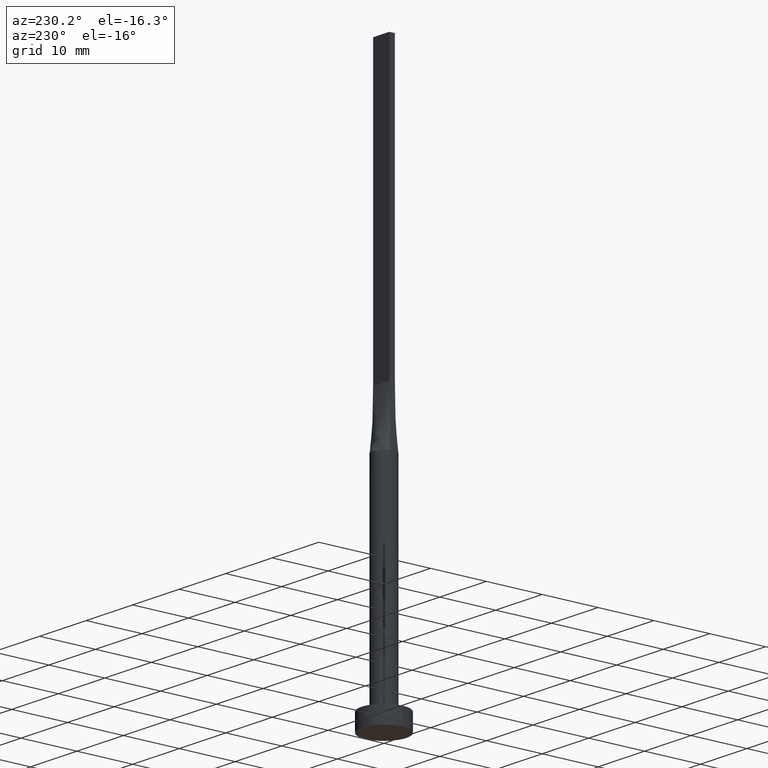
[diagram: clean part render]
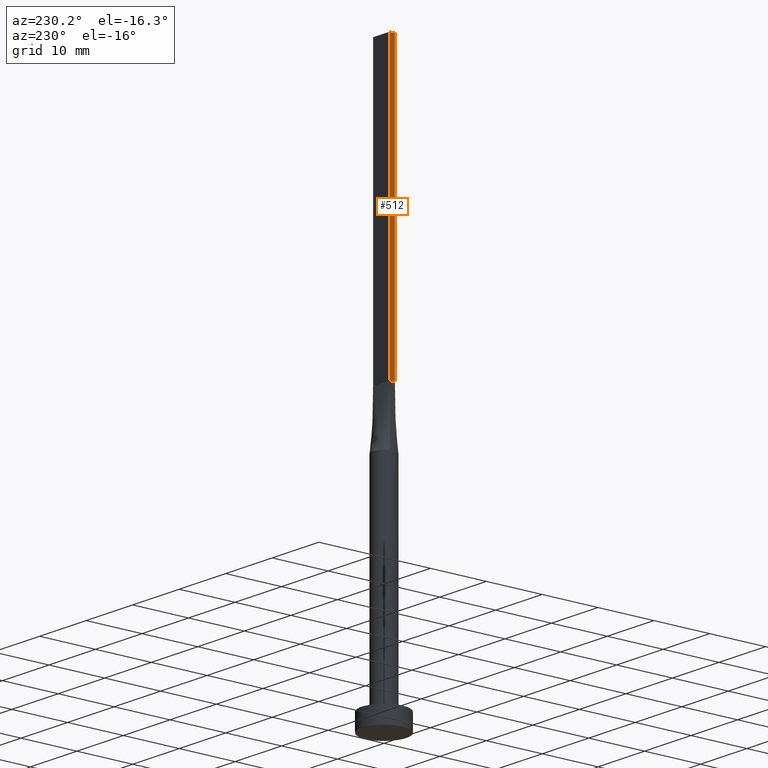
[diagram: same view with one face highlighted and labeled with its STEP entity id]
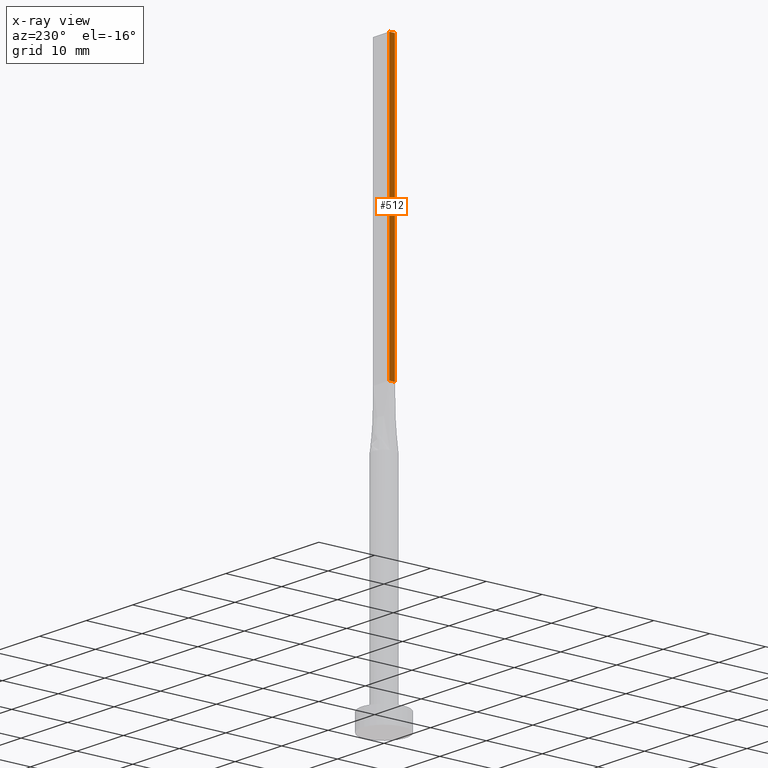
[diagram: x-ray of the same camera — body ghosted, the highlighted face saturated]
A machine part, auxiliary view. The second image highlights one B-rep face of the part: STEP entity #512.
The next image is the same camera in x-ray: the body ghosted, the highlighted face saturated — about 0% of this face is hidden behind the body in this view.
In plain terms, the highlighted planar face has unit normal (1, -0, 0).
Its self-contained STEP definition (entity closure, byte-faithful):
#2 = CARTESIAN_POINT ( 'NONE',  ( -1.750000000000000000, -0.4999999999999995559, 100.0000000000000000 ) ) ;
#7 = LINE ( 'NONE', #135, #498 ) ;
#35 = DIRECTION ( 'NONE',  ( -0.000000000000000000, -0.000000000000000000, -1.000000000000000000 ) ) ;
#51 = EDGE_CURVE ( 'NONE', #410, #278, #219, .T. ) ;
#76 = VERTEX_POINT ( 'NONE', #408 ) ;
#85 = EDGE_CURVE ( 'NONE', #278, #76, #106, .T. ) ;
#94 = EDGE_CURVE ( 'NONE', #410, #384, #7, .T. ) ;
#101 = CARTESIAN_POINT ( 'NONE',  ( -1.749999999999999778, 0.5000000000000002220, 50.00000000000000000 ) ) ;
#106 = LINE ( 'NONE', #101, #220 ) ;
#126 = EDGE_CURVE ( 'NONE', #384, #76, #211, .T. ) ;
#128 = CARTESIAN_POINT ( 'NONE',  ( -1.749999999999999778, 0.5000000000000002220, 100.0000000000000000 ) ) ;
#135 = CARTESIAN_POINT ( 'NONE',  ( -1.749999999999999778, 0.5000000000000002220, 100.0000000000000000 ) ) ;
#166 = VECTOR ( 'NONE', #35, 1000.000000000000000 ) ;
#168 = ORIENTED_EDGE ( 'NONE', *, *, #126, .F. ) ;
#179 = CARTESIAN_POINT ( 'NONE',  ( -1.749999999999999778, 0.5000000000000002220, 100.0000000000000000 ) ) ;
#211 = LINE ( 'NONE', #2, #399 ) ;
#219 = LINE ( 'NONE', #128, #166 ) ;
#220 = VECTOR ( 'NONE', #427, 1000.000000000000000 ) ;
#243 = EDGE_LOOP ( 'NONE', ( #494, #168, #565, #559 ) ) ;
#252 = FACE_OUTER_BOUND ( 'NONE', #243, .T. ) ;
#272 = DIRECTION ( 'NONE',  ( 2.168404344971009361E-16, 1.000000000000000000, 0.000000000000000000 ) ) ;
#278 = VERTEX_POINT ( 'NONE', #393 ) ;
#284 = DIRECTION ( 'NONE',  ( -2.168404344971009361E-16, -1.000000000000000000, 0.000000000000000000 ) ) ;
#312 = CARTESIAN_POINT ( 'NONE',  ( -1.749999999999999778, 0.5000000000000002220, 100.0000000000000000 ) ) ;
#349 = PLANE ( 'NONE',  #524 ) ;
#384 = VERTEX_POINT ( 'NONE', #423 ) ;
#393 = CARTESIAN_POINT ( 'NONE',  ( -1.749999999999999778, 0.5000000000000002220, 50.00000000000000000 ) ) ;
#399 = VECTOR ( 'NONE', #451, 1000.000000000000000 ) ;
#407 = DIRECTION ( 'NONE',  ( 1.000000000000000000, -2.168404344971009361E-16, 0.000000000000000000 ) ) ;
#408 = CARTESIAN_POINT ( 'NONE',  ( -1.750000000000000000, -0.4999999999999995559, 50.00000000000000000 ) ) ;
#410 = VERTEX_POINT ( 'NONE', #179 ) ;
#423 = CARTESIAN_POINT ( 'NONE',  ( -1.750000000000000000, -0.4999999999999995559, 100.0000000000000000 ) ) ;
#427 = DIRECTION ( 'NONE',  ( -2.168404344971009361E-16, -1.000000000000000000, 0.000000000000000000 ) ) ;
#451 = DIRECTION ( 'NONE',  ( -0.000000000000000000, -0.000000000000000000, -1.000000000000000000 ) ) ;
#494 = ORIENTED_EDGE ( 'NONE', *, *, #85, .T. ) ;
#498 = VECTOR ( 'NONE', #284, 1000.000000000000000 ) ;
#512 = ADVANCED_FACE ( 'NONE', ( #252 ), #349, .F. ) ;
#524 = AXIS2_PLACEMENT_3D ( 'NONE', #312, #407, #272 ) ;
#559 = ORIENTED_EDGE ( 'NONE', *, *, #51, .T. ) ;
#565 = ORIENTED_EDGE ( 'NONE', *, *, #94, .F. ) ;